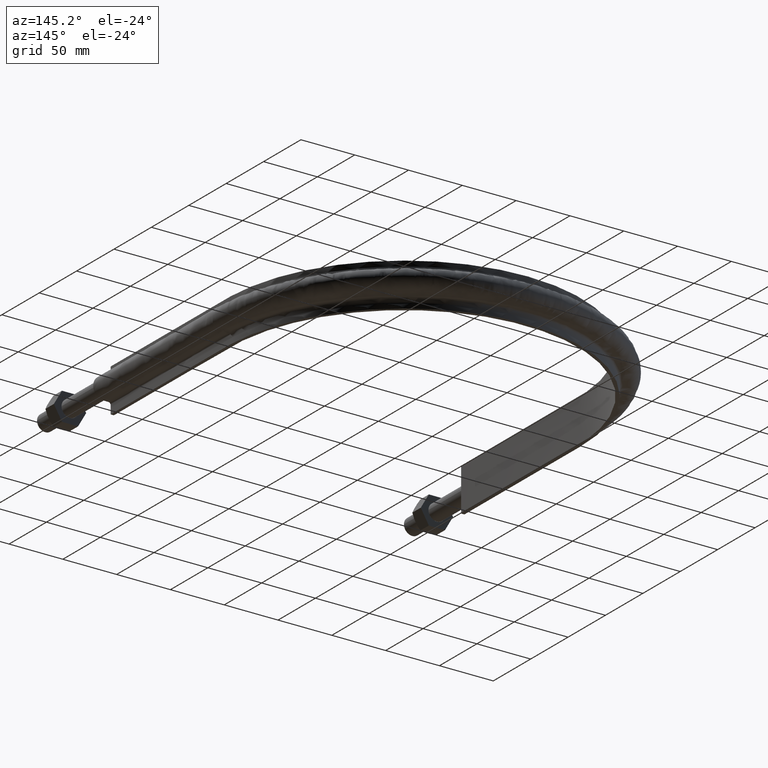
[diagram: clean part render]
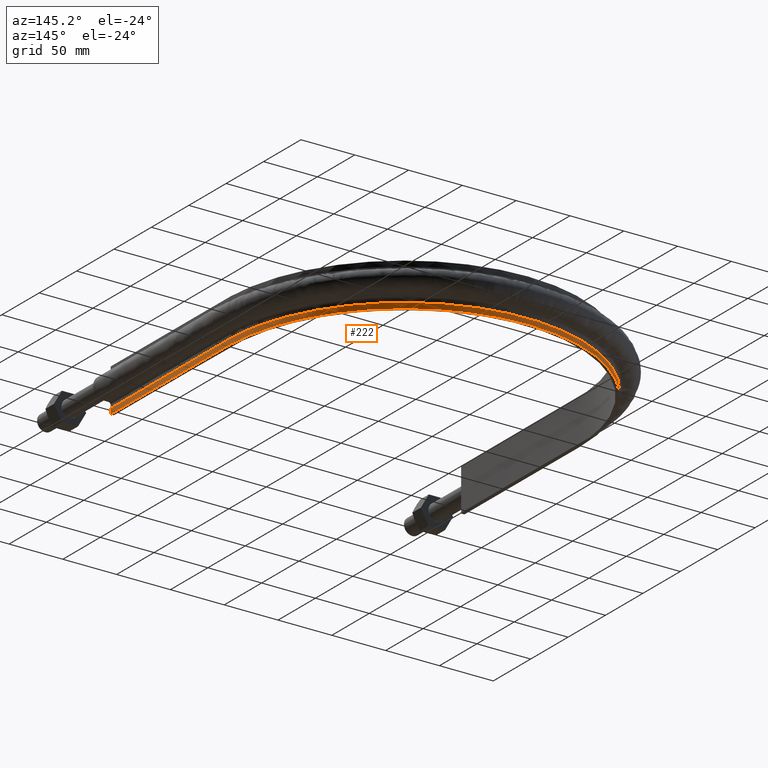
[diagram: same view with one face highlighted and labeled with its STEP entity id]
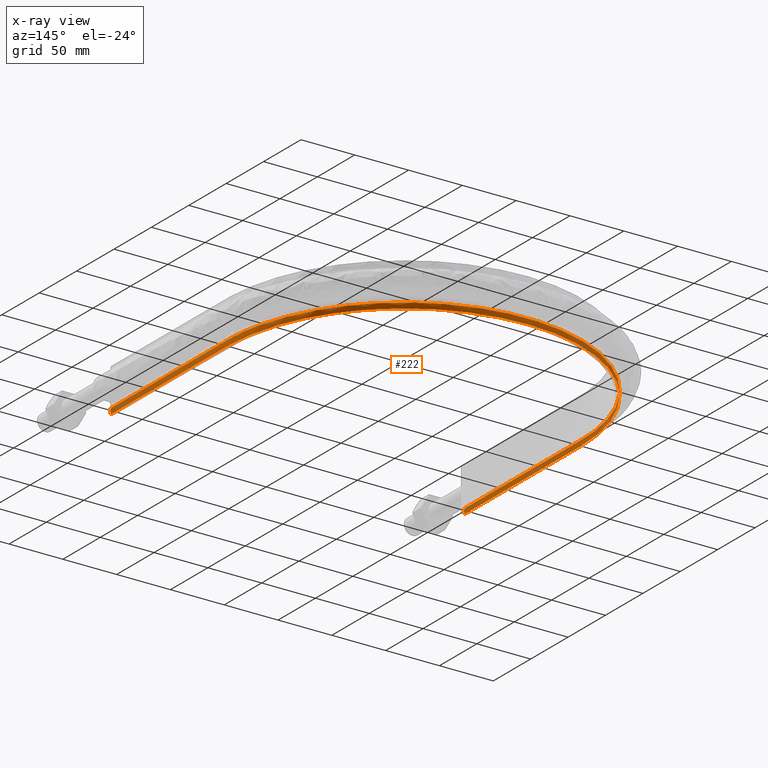
[diagram: x-ray of the same camera — body ghosted, the highlighted face saturated]
A machine part, auxiliary view. The second image highlights one B-rep face of the part: STEP entity #222.
The next image is the same camera in x-ray: the body ghosted, the highlighted face saturated — about 0% of this face is hidden behind the body in this view.
In plain terms, the highlighted face is a SurfaceOfExtrusion surface.
Its self-contained STEP definition (entity closure, byte-faithful):
#222 = ADVANCED_FACE( '', ( #267 ), #268, .T. );
#267 = FACE_OUTER_BOUND( '', #943, .T. );
#268 = SURFACE_OF_LINEAR_EXTRUSION( '', #944, #945 );
#943 = EDGE_LOOP( '', ( #1561, #1562, #1563, #1564 ) );
#944 = B_SPLINE_CURVE_WITH_KNOTS( '', 3, ( #1565, #1566, #1567, #1568, #1569, #1570, #1571, #1572, #1573, #1574, #1575, #1576, #1577, #1578, #1579, #1580, #1581, #1582, #1583, #1584, #1585, #1586, #1587, #1588, #1589, #1590, #1591, #1592, #1593, #1594, #1595, #1596, #1597, #1598, #1599, #1600, #1601, #1602, #1603, #1604, #1605, #1606, #1607, #1608, #1609, #1610, #1611, #1612, #1613, #1614, #1615, #1616, #1617, #1618, #1619, #1620, #1621, #1622, #1623, #1624, #1625, #1626, #1627, #1628, #1629, #1630, #1631, #1632, #1633, #1634, #1635, #1636, #1637, #1638, #1639, #1640, #1641, #1642, #1643, #1644, #1645, #1646, #1647, #1648, #1649, #1650, #1651, #1652, #1653, #1654, #1655, #1656, #1657, #1658, #1659, #1660, #1661, #1662, #1663, #1664, #1665, #1666, #1667, #1668, #1669, #1670, #1671, #1672, #1673, #1674 ), .UNSPECIFIED., .F., .F., ( 4, 1, 2, 2, 2, 2, 2, 2, 2, 2, 2, 2, 2, 2, 2, 2, 2, 2, 2, 2, 2, 2, 2, 2, 2, 2, 2, 2, 2, 2, 2, 2, 2, 2, 2, 2, 2, 2, 2, 2, 2, 2, 2, 2, 2, 2, 2, 2, 2, 2, 2, 2, 2, 2, 1, 4 ), ( 0.000000000000000, 0.124999999999995, 0.187499999999993, 0.191406249999993, 0.195312499999993, 0.203124999999992, 0.218749999999991, 0.222656249999991, 0.226562499999991, 0.234374999999991, 0.249999999999991, 0.281249999999991, 0.289062499999991, 0.292968749999991, 0.296874999999991, 0.312499999999991, 0.343749999999991, 0.351562499999991, 0.359374999999991, 0.374999999999990, 0.406249999999990, 0.421874999999990, 0.429687499999990, 0.437499999999990, 0.468749999999989, 0.484374999999989, 0.492187499999989, 0.499999999999989, 0.515624999999989, 0.531249999999988, 0.546874999999988, 0.554687499999988, 0.562499999999988, 0.578124999999988, 0.593749999999988, 0.624999999999988, 0.628906249999988, 0.632812499999988, 0.640624999999988, 0.656249999999988, 0.687499999999988, 0.691406249999988, 0.695312499999988, 0.703124999999988, 0.718749999999988, 0.749999999999988, 0.757812499999988, 0.761718749999988, 0.765624999999988, 0.781249999999989, 0.796874999999990, 0.804687499999990, 0.808593749999990, 0.812499999999990, 0.874999999999994, 1.00000000000000 ), .UNSPECIFIED. );
#945 = VECTOR( '', #1675, 1000.00000000000 );
#1561 = ORIENTED_EDGE( '', *, *, #1924, .T. );
#1562 = ORIENTED_EDGE( '', *, *, #1929, .T. );
#1563 = ORIENTED_EDGE( '', *, *, #1931, .F. );
#1564 = ORIENTED_EDGE( '', *, *, #1932, .F. );
#1565 = CARTESIAN_POINT( '', ( -164.400000000000, 78.5100000000001, -15.0000000000000 ) );
#1566 = CARTESIAN_POINT( '', ( -164.400000000000, 112.996106467763, -15.0000000000000 ) );
#1567 = CARTESIAN_POINT( '', ( -164.400000000000, 164.725266169408, -15.0000000000000 ) );
#1568 = CARTESIAN_POINT( '', ( -164.400000000000, 216.454425871052, -15.0000000000000 ) );
#1569 = CARTESIAN_POINT( '', ( -164.400000000000, 234.775169932051, -15.0000000000000 ) );
#1570 = CARTESIAN_POINT( '', ( -164.398813550317, 235.852821581500, -15.0000000000000 ) );
#1571 = CARTESIAN_POINT( '', ( -164.368108367063, 238.007189322103, -15.0000000000000 ) );
#1572 = CARTESIAN_POINT( '', ( -164.342080895018, 239.084020697952, -15.0000000000000 ) );
#1573 = CARTESIAN_POINT( '', ( -164.232092194460, 242.313461250392, -15.0000000000000 ) );
#1574 = CARTESIAN_POINT( '', ( -164.116241194121, 244.465017397138, -15.0000000000000 ) );
#1575 = CARTESIAN_POINT( '', ( -163.641462036595, 250.915484711679, -15.0000000000000 ) );
#1576 = CARTESIAN_POINT( '', ( -163.155580462305, 255.210203759885, -15.0000000000000 ) );
#1577 = CARTESIAN_POINT( '', ( -162.333675363724, 260.571517826757, -15.0000000000000 ) );
#1578 = CARTESIAN_POINT( '', ( -162.158545284194, 261.643425696206, -15.0000000000000 ) );
#1579 = CARTESIAN_POINT( '', ( -161.786628214989, 263.786526303843, -15.0000000000000 ) );
#1580 = CARTESIAN_POINT( '', ( -161.589634482679, 264.858713038455, -15.0000000000000 ) );
#1581 = CARTESIAN_POINT( '', ( -160.968305431881, 268.062088811464, -15.0000000000000 ) );
#1582 = CARTESIAN_POINT( '', ( -160.513270676098, 270.182710055850, -15.0000000000000 ) );
#1583 = CARTESIAN_POINT( '', ( -159.027557754481, 276.500359593573, -15.0000000000000 ) );
#1584 = CARTESIAN_POINT( '', ( -157.876518451671, 280.653264429394, -15.0000000000000 ) );
#1585 = CARTESIAN_POINT( '', ( -153.947032001795, 292.937345931315, -15.0000000000000 ) );
#1586 = CARTESIAN_POINT( '', ( -150.691120136139, 300.893487741848, -15.0000000000000 ) );
#1587 = CARTESIAN_POINT( '', ( -145.821985675345, 310.545668134871, -15.0000000000000 ) );
#1588 = CARTESIAN_POINT( '', ( -144.807995502513, 312.461380666881, -15.0000000000000 ) );
#1589 = CARTESIAN_POINT( '', ( -143.225880960344, 315.312539944798, -15.0000000000000 ) );
#1590 = CARTESIAN_POINT( '', ( -142.687697489771, 316.260241598423, -15.0000000000000 ) );
#1591 = CARTESIAN_POINT( '', ( -141.594350337442, 318.141956024918, -15.0000000000000 ) );
#1592 = CARTESIAN_POINT( '', ( -141.039267835167, 319.075891761575, -15.0000000000000 ) );
#1593 = CARTESIAN_POINT( '', ( -138.222181199068, 323.711268029201, -15.0000000000000 ) );
#1594 = CARTESIAN_POINT( '', ( -135.835418638084, 327.310018570784, -15.0000000000000 ) );
#1595 = CARTESIAN_POINT( '', ( -128.283562816433, 337.783966292530, -15.0000000000000 ) );
#1596 = CARTESIAN_POINT( '', ( -122.726288805896, 344.336355322911, -15.0000000000000 ) );
#1597 = CARTESIAN_POINT( '', ( -115.123140385251, 351.986423454744, -15.0000000000000 ) );
#1598 = CARTESIAN_POINT( '', ( -113.569638753351, 353.489379830996, -15.0000000000000 ) );
#1599 = CARTESIAN_POINT( '', ( -110.396195337457, 356.440604987088, -15.0000000000000 ) );
#1600 = CARTESIAN_POINT( '', ( -108.774438835459, 357.890427378995, -15.0000000000000 ) );
#1601 = CARTESIAN_POINT( '', ( -103.819607334312, 362.146372134186, -15.0000000000000 ) );
#1602 = CARTESIAN_POINT( '', ( -100.426161144554, 364.834793604190, -15.0000000000000 ) );
#1603 = CARTESIAN_POINT( '', ( -89.9824687653419, 372.465514094679, -15.0000000000000 ) );
#1604 = CARTESIAN_POINT( '', ( -82.6696423250386, 376.974545597898, -15.0000000000000 ) );
#1605 = CARTESIAN_POINT( '', ( -71.1713718990070, 382.865171733881, -15.0000000000000 ) );
#1606 = CARTESIAN_POINT( '', ( -67.2506245394262, 384.683525984584, -15.0000000000000 ) );
#1607 = CARTESIAN_POINT( '', ( -61.2349390330761, 387.189020812454, -15.0000000000000 ) );
#1608 = CARTESIAN_POINT( '', ( -59.2041890055403, 387.988083247064, -15.0000000000000 ) );
#1609 = CARTESIAN_POINT( '', ( -55.1322863354683, 389.498206135326, -15.0000000000000 ) );
#1610 = CARTESIAN_POINT( '', ( -53.0874238815457, 390.210949480402, -15.0000000000000 ) );
#1611 = CARTESIAN_POINT( '', ( -42.8192026236166, 393.566146384567, -15.0000000000000 ) );
#1612 = CARTESIAN_POINT( '', ( -34.4651179161253, 395.587794430536, -15.0000000000000 ) );
#1613 = CARTESIAN_POINT( '', ( -21.7242525597123, 397.624238271828, -15.0000000000000 ) );
#1614 = CARTESIAN_POINT( '', ( -17.4422836120292, 398.136775373455, -15.0000000000000 ) );
#1615 = CARTESIAN_POINT( '', ( -10.9662055313146, 398.653296815738, -15.0000000000000 ) );
#1616 = CARTESIAN_POINT( '', ( -8.79864529239620, 398.783359457582, -15.0000000000000 ) );
#1617 = CARTESIAN_POINT( '', ( -4.44551903538577, 398.957976921619, -15.0000000000000 ) );
#1618 = CARTESIAN_POINT( '', ( -2.27259610837854, 399.001985705461, -15.0000000000000 ) );
#1619 = CARTESIAN_POINT( '', ( 4.22655632945022, 399.006162562492, -15.0000000000000 ) );
#1620 = CARTESIAN_POINT( '', ( 8.53713545173537, 398.838905013959, -15.0000000000000 ) );
#1621 = CARTESIAN_POINT( '', ( 17.1147215710093, 398.170483930921, -15.0000000000000 ) );
#1622 = CARTESIAN_POINT( '', ( 21.3817269434237, 397.669307946827, -15.0000000000000 ) );
#1623 = CARTESIAN_POINT( '', ( 29.8718824409126, 396.330880345343, -15.0000000000000 ) );
#1624 = CARTESIAN_POINT( '', ( 34.0949513257592, 395.493006160240, -15.0000000000000 ) );
#1625 = CARTESIAN_POINT( '', ( 40.3962993198101, 393.981349502615, -15.0000000000000 ) );
#1626 = CARTESIAN_POINT( '', ( 42.4912038565129, 393.434972561113, -15.0000000000000 ) );
#1627 = CARTESIAN_POINT( '', ( 46.6697995000334, 392.256286873398, -15.0000000000000 ) );
#1628 = CARTESIAN_POINT( '', ( 48.7579338922558, 391.622436253105, -15.0000000000000 ) );
#1629 = CARTESIAN_POINT( '', ( 54.9584216875447, 389.605524079873, -15.0000000000000 ) );
#1630 = CARTESIAN_POINT( '', ( 59.0140687451709, 388.106221395848, -15.0000000000000 ) );
#1631 = CARTESIAN_POINT( '', ( 66.9734086702903, 384.806295118109, -15.0000000000000 ) );
#1632 = CARTESIAN_POINT( '', ( 70.8770915855636, 383.005651789421, -15.0000000000000 ) );
#1633 = CARTESIAN_POINT( '', ( 82.3605021218268, 377.152321599626, -15.0000000000000 ) );
#1634 = CARTESIAN_POINT( '', ( 89.7120307014920, 372.647122421075, -15.0000000000000 ) );
#1635 = CARTESIAN_POINT( '', ( 97.6299249979688, 366.879626274600, -15.0000000000000 ) );
#1636 = CARTESIAN_POINT( '', ( 98.5047204132680, 366.229041053651, -15.0000000000000 ) );
#1637 = CARTESIAN_POINT( '', ( 100.236657581933, 364.914222046599, -15.0000000000000 ) );
#1638 = CARTESIAN_POINT( '', ( 101.094794684466, 364.249272856705, -15.0000000000000 ) );
#1639 = CARTESIAN_POINT( '', ( 103.645933153505, 362.232019577849, -15.0000000000000 ) );
#1640 = CARTESIAN_POINT( '', ( 105.315674270232, 360.857321899442, -15.0000000000000 ) );
#1641 = CARTESIAN_POINT( '', ( 110.233147606976, 356.644897390919, -15.0000000000000 ) );
#1642 = CARTESIAN_POINT( '', ( 113.389316657785, 353.719018970044, -15.0000000000000 ) );
#1643 = CARTESIAN_POINT( '', ( 122.494796724361, 344.591882752152, -15.0000000000000 ) );
#1644 = CARTESIAN_POINT( '', ( 128.081145291164, 338.041186228428, -15.0000000000000 ) );
#1645 = CARTESIAN_POINT( '', ( 133.803670384363, 330.130479675381, -15.0000000000000 ) );
#1646 = CARTESIAN_POINT( '', ( 134.431692733714, 329.243989644066, -15.0000000000000 ) );
#1647 = CARTESIAN_POINT( '', ( 135.671998176902, 327.455856759366, -15.0000000000000 ) );
#1648 = CARTESIAN_POINT( '', ( 136.284665085840, 326.553597174778, -15.0000000000000 ) );
#1649 = CARTESIAN_POINT( '', ( 138.091073738600, 323.835825608081, -15.0000000000000 ) );
#1650 = CARTESIAN_POINT( '', ( 139.255724754700, 322.005851801354, -15.0000000000000 ) );
#1651 = CARTESIAN_POINT( '', ( 142.632951955004, 316.462530378628, -15.0000000000000 ) );
#1652 = CARTESIAN_POINT( '', ( 144.729041813961, 312.695892337488, -15.0000000000000 ) );
#1653 = CARTESIAN_POINT( '', ( 150.559103149299, 301.186356080804, -15.0000000000000 ) );
#1654 = CARTESIAN_POINT( '', ( 153.837172045715, 293.234890531218, -15.0000000000000 ) );
#1655 = CARTESIAN_POINT( '', ( 157.149590192740, 282.936358190019, -15.0000000000000 ) );
#1656 = CARTESIAN_POINT( '', ( 157.772812341462, 280.858690291605, -15.0000000000000 ) );
#1657 = CARTESIAN_POINT( '', ( 158.648068770349, 277.714933118652, -15.0000000000000 ) );
#1658 = CARTESIAN_POINT( '', ( 158.930158123234, 276.661365833308, -15.0000000000000 ) );
#1659 = CARTESIAN_POINT( '', ( 159.472262153517, 274.553221977531, -15.0000000000000 ) );
#1660 = CARTESIAN_POINT( '', ( 159.732447986844, 273.498121732389, -15.0000000000000 ) );
#1661 = CARTESIAN_POINT( '', ( 160.979600094206, 268.217531333791, -15.0000000000000 ) );
#1662 = CARTESIAN_POINT( '', ( 161.805586980862, 263.976806953231, -15.0000000000000 ) );
#1663 = CARTESIAN_POINT( '', ( 163.122468535573, 255.463646859113, -15.0000000000000 ) );
#1664 = CARTESIAN_POINT( '', ( 163.613345066263, 251.191209429132, -15.0000000000000 ) );
#1665 = CARTESIAN_POINT( '', ( 164.098151632013, 244.758751892187, -15.0000000000000 ) );
#1666 = CARTESIAN_POINT( '', ( 164.217770636892, 242.610626316205, -15.0000000000000 ) );
#1667 = CARTESIAN_POINT( '', ( 164.333610316843, 239.382420246157, -15.0000000000000 ) );
#1668 = CARTESIAN_POINT( '', ( 164.361621235171, 238.305348210462, -15.0000000000000 ) );
#1669 = CARTESIAN_POINT( '', ( 164.396285024590, 236.149182927863, -15.0000000000000 ) );
#1670 = CARTESIAN_POINT( '', ( 164.400000000000, 235.069811654245, -15.0000000000000 ) );
#1671 = CARTESIAN_POINT( '', ( 164.400000000000, 216.714523391334, -15.0000000000000 ) );
#1672 = CARTESIAN_POINT( '', ( 164.400000000000, 164.887827119584, -15.0000000000000 ) );
#1673 = CARTESIAN_POINT( '', ( 164.400000000000, 113.061130847834, -15.0000000000000 ) );
#1674 = CARTESIAN_POINT( '', ( 164.400000000000, 78.5100000000000, -15.0000000000000 ) );
#1675 = DIRECTION( '', ( 0.000000000000000, 0.000000000000000, -1.00000000000000 ) );
#1924 = EDGE_CURVE( '', #2001, #1999, #2002, .T. );
#1929 = EDGE_CURVE( '', #1999, #2009, #2011, .F. );
#1931 = EDGE_CURVE( '', #2013, #2009, #2014, .T. );
#1932 = EDGE_CURVE( '', #2001, #2013, #2015, .F. );
#1999 = VERTEX_POINT( '', #2274 );
#2001 = VERTEX_POINT( '', #2307 );
#2002 = B_SPLINE_CURVE_WITH_KNOTS( '', 3, ( #2308, #2309, #2310, #2311, #2312, #2313, #2314, #2315, #2316, #2317, #2318, #2319, #2320, #2321, #2322, #2323, #2324, #2325, #2326, #2327, #2328, #2329, #2330, #2331, #2332, #2333, #2334, #2335, #2336, #2337, #2338, #2339, #2340, #2341, #2342, #2343, #2344, #2345, #2346, #2347, #2348, #2349, #2350, #2351, #2352, #2353, #2354, #2355, #2356, #2357, #2358, #2359, #2360, #2361, #2362, #2363, #2364, #2365, #2366, #2367, #2368, #2369, #2370, #2371, #2372, #2373, #2374, #2375, #2376, #2377, #2378, #2379, #2380, #2381, #2382, #2383, #2384, #2385, #2386, #2387, #2388, #2389, #2390, #2391, #2392, #2393, #2394, #2395, #2396, #2397, #2398, #2399, #2400, #2401, #2402, #2403, #2404, #2405, #2406, #2407, #2408, #2409, #2410, #2411, #2412, #2413, #2414, #2415, #2416, #2417 ), .UNSPECIFIED., .F., .F., ( 4, 1, 2, 2, 2, 2, 2, 2, 2, 2, 2, 2, 2, 2, 2, 2, 2, 2, 2, 2, 2, 2, 2, 2, 2, 2, 2, 2, 2, 2, 2, 2, 2, 2, 2, 2, 2, 2, 2, 2, 2, 2, 2, 2, 2, 2, 2, 2, 2, 2, 2, 2, 2, 2, 1, 4 ), ( 0.000000000000000, 0.124999999999995, 0.187499999999993, 0.191406249999993, 0.195312499999993, 0.203124999999992, 0.218749999999991, 0.222656249999991, 0.226562499999991, 0.234374999999991, 0.249999999999991, 0.281249999999991, 0.289062499999991, 0.292968749999991, 0.296874999999991, 0.312499999999991, 0.343749999999991, 0.351562499999991, 0.359374999999991, 0.374999999999990, 0.406249999999990, 0.421874999999990, 0.429687499999990, 0.437499999999990, 0.468749999999989, 0.484374999999989, 0.492187499999989, 0.499999999999989, 0.515624999999989, 0.531249999999988, 0.546874999999988, 0.554687499999988, 0.562499999999988, 0.578124999999988, 0.593749999999988, 0.624999999999988, 0.628906249999988, 0.632812499999988, 0.640624999999988, 0.656249999999988, 0.687499999999988, 0.691406249999988, 0.695312499999988, 0.703124999999988, 0.718749999999988, 0.749999999999988, 0.757812499999988, 0.761718749999988, 0.765624999999988, 0.781249999999989, 0.796874999999990, 0.804687499999990, 0.808593749999990, 0.812499999999990, 0.874999999999994, 1.00000000000000 ), .UNSPECIFIED. );
#2009 = VERTEX_POINT( '', #2466 );
#2011 = LINE( '', #2469, #2470 );
#2013 = VERTEX_POINT( '', #2473 );
#2014 = B_SPLINE_CURVE_WITH_KNOTS( '', 3, ( #2474, #2475, #2476, #2477, #2478, #2479, #2480, #2481, #2482, #2483, #2484, #2485, #2486, #2487, #2488, #2489, #2490, #2491, #2492, #2493, #2494, #2495, #2496, #2497, #2498, #2499, #2500, #2501, #2502, #2503, #2504, #2505, #2506, #2507, #2508, #2509, #2510, #2511, #2512, #2513, #2514, #2515, #2516, #2517, #2518, #2519, #2520, #2521, #2522, #2523, #2524, #2525, #2526, #2527, #2528, #2529, #2530, #2531, #2532, #2533, #2534, #2535, #2536, #2537, #2538, #2539, #2540, #2541, #2542, #2543, #2544, #2545, #2546, #2547, #2548, #2549, #2550, #2551, #2552, #2553, #2554, #2555, #2556, #2557, #2558, #2559, #2560, #2561, #2562, #2563, #2564, #2565, #2566, #2567, #2568, #2569, #2570, #2571, #2572, #2573, #2574, #2575, #2576, #2577, #2578, #2579, #2580, #2581, #2582, #2583, #2584, #2585, #2586, #2587, #2588, #2589, #2590, #2591, #2592, #2593, #2594, #2595, #2596, #2597, #2598, #2599, #2600, #2601, #2602, #2603, #2604 ), .UNSPECIFIED., .F., .F., ( 4, 1, 1, 1, 1, 2, 2, 2, 2, 2, 2, 2, 2, 2, 2, 2, 2, 2, 2, 2, 2, 2, 2, 2, 2, 2, 2, 2, 2, 2, 2, 2, 2, 2, 2, 2, 2, 2, 2, 2, 2, 2, 2, 2, 2, 2, 2, 2, 2, 2, 2, 2, 2, 2, 2, 2, 1, 2, 2, 2, 2, 2, 2, 2, 2, 1, 1, 1, 1, 4 ), ( 2.77555756156289E-017, 0.104054729085103, 0.130068411356378, 0.143075252492016, 0.149578673059835, 0.152830383343744, 0.156082093627654, 0.159333803911563, 0.162585514195473, 0.169088934763292, 0.182095775898929, 0.195102617034567, 0.208109458170204, 0.221116299305842, 0.227619719873661, 0.234123140441480, 0.247129981577118, 0.260136822712756, 0.273143663848393, 0.276395374132303, 0.279647084416212, 0.286150504984031, 0.299157346119668, 0.312164187255306, 0.325171028390943, 0.331674448958762, 0.334926159242671, 0.338177869526581, 0.351184710662218, 0.364191551797856, 0.377198392933494, 0.383701813501312, 0.386953523785222, 0.390205234069131, 0.403212075204769, 0.416218916340407, 0.429225757476045, 0.442232598611682, 0.448736019179501, 0.455239439747320, 0.468246280882958, 0.481253122018596, 0.494259963154234, 0.500763383722053, 0.507266804289871, 0.520273645425509, 0.533280486561147, 0.546287327696785, 0.552790748264604, 0.556042458548513, 0.559294168832423, 0.572301009968061, 0.585307851103699, 0.598314692239338, 0.611321533374976, 0.614573243658886, 0.617824953942795, 0.624328374510615, 0.637335215646253, 0.650342056781891, 0.663348897917529, 0.669852318485348, 0.673104028769258, 0.676355739053168, 0.679607449337077, 0.682859159620987, 0.689362580188806, 0.702369421324444, 0.728383103595721, 0.832437832680827 ), .UNSPECIFIED. );
#2015 = LINE( '', #2605, #2606 );
#2274 = CARTESIAN_POINT( '', ( 164.400000000000, 78.5100000000001, -15.0000000000000 ) );
#2307 = CARTESIAN_POINT( '', ( -164.400000000000, 78.5100000000001, -15.0000000000000 ) );
#2308 = CARTESIAN_POINT( '', ( -164.400000000000, 78.5100000000001, -15.0000000000000 ) );
#2309 = CARTESIAN_POINT( '', ( -164.400000000000, 112.996106467763, -15.0000000000000 ) );
#2310 = CARTESIAN_POINT( '', ( -164.400000000000, 164.725266169408, -15.0000000000000 ) );
#2311 = CARTESIAN_POINT( '', ( -164.400000000000, 216.454425871052, -15.0000000000000 ) );
#2312 = CARTESIAN_POINT( '', ( -164.400000000000, 234.775169932051, -15.0000000000000 ) );
#2313 = CARTESIAN_POINT( '', ( -164.398813550317, 235.852821581500, -15.0000000000000 ) );
#2314 = CARTESIAN_POINT( '', ( -164.368108367063, 238.007189322103, -15.0000000000000 ) );
#2315 = CARTESIAN_POINT( '', ( -164.342080895018, 239.084020697952, -15.0000000000000 ) );
#2316 = CARTESIAN_POINT( '', ( -164.232092194460, 242.313461250392, -15.0000000000000 ) );
#2317 = CARTESIAN_POINT( '', ( -164.116241194121, 244.465017397138, -15.0000000000000 ) );
#2318 = CARTESIAN_POINT( '', ( -163.641462036595, 250.915484711679, -15.0000000000000 ) );
#2319 = CARTESIAN_POINT( '', ( -163.155580462305, 255.210203759885, -15.0000000000000 ) );
#2320 = CARTESIAN_POINT( '', ( -162.333675363724, 260.571517826757, -15.0000000000000 ) );
#2321 = CARTESIAN_POINT( '', ( -162.158545284194, 261.643425696206, -15.0000000000000 ) );
#2322 = CARTESIAN_POINT( '', ( -161.786628214989, 263.786526303843, -15.0000000000000 ) );
#2323 = CARTESIAN_POINT( '', ( -161.589634482679, 264.858713038455, -15.0000000000000 ) );
#2324 = CARTESIAN_POINT( '', ( -160.968305431881, 268.062088811464, -15.0000000000000 ) );
#2325 = CARTESIAN_POINT( '', ( -160.513270676098, 270.182710055850, -15.0000000000000 ) );
#2326 = CARTESIAN_POINT( '', ( -159.027557754481, 276.500359593573, -15.0000000000000 ) );
#2327 = CARTESIAN_POINT( '', ( -157.876518451671, 280.653264429394, -15.0000000000000 ) );
#2328 = CARTESIAN_POINT( '', ( -153.947032001795, 292.937345931315, -15.0000000000000 ) );
#2329 = CARTESIAN_POINT( '', ( -150.691120136139, 300.893487741848, -15.0000000000000 ) );
#2330 = CARTESIAN_POINT( '', ( -145.821985675345, 310.545668134871, -15.0000000000000 ) );
#2331 = CARTESIAN_POINT( '', ( -144.807995502513, 312.461380666881, -15.0000000000000 ) );
#2332 = CARTESIAN_POINT( '', ( -143.225880960344, 315.312539944798, -15.0000000000000 ) );
#2333 = CARTESIAN_POINT( '', ( -142.687697489771, 316.260241598423, -15.0000000000000 ) );
#2334 = CARTESIAN_POINT( '', ( -141.594350337442, 318.141956024918, -15.0000000000000 ) );
#2335 = CARTESIAN_POINT( '', ( -141.039267835167, 319.075891761575, -15.0000000000000 ) );
#2336 = CARTESIAN_POINT( '', ( -138.222181199068, 323.711268029201, -15.0000000000000 ) );
#2337 = CARTESIAN_POINT( '', ( -135.835418638084, 327.310018570784, -15.0000000000000 ) );
#2338 = CARTESIAN_POINT( '', ( -128.283562816433, 337.783966292530, -15.0000000000000 ) );
#2339 = CARTESIAN_POINT( '', ( -122.726288805896, 344.336355322911, -15.0000000000000 ) );
#2340 = CARTESIAN_POINT( '', ( -115.123140385251, 351.986423454744, -15.0000000000000 ) );
#2341 = CARTESIAN_POINT( '', ( -113.569638753351, 353.489379830996, -15.0000000000000 ) );
#2342 = CARTESIAN_POINT( '', ( -110.396195337457, 356.440604987088, -15.0000000000000 ) );
#2343 = CARTESIAN_POINT( '', ( -108.774438835459, 357.890427378995, -15.0000000000000 ) );
#2344 = CARTESIAN_POINT( '', ( -103.819607334312, 362.146372134186, -15.0000000000000 ) );
#2345 = CARTESIAN_POINT( '', ( -100.426161144554, 364.834793604190, -15.0000000000000 ) );
#2346 = CARTESIAN_POINT( '', ( -89.9824687653419, 372.465514094679, -15.0000000000000 ) );
#2347 = CARTESIAN_POINT( '', ( -82.6696423250386, 376.974545597898, -15.0000000000000 ) );
#2348 = CARTESIAN_POINT( '', ( -71.1713718990070, 382.865171733881, -15.0000000000000 ) );
#2349 = CARTESIAN_POINT( '', ( -67.2506245394262, 384.683525984584, -15.0000000000000 ) );
#2350 = CARTESIAN_POINT( '', ( -61.2349390330761, 387.189020812454, -15.0000000000000 ) );
#2351 = CARTESIAN_POINT( '', ( -59.2041890055403, 387.988083247064, -15.0000000000000 ) );
#2352 = CARTESIAN_POINT( '', ( -55.1322863354683, 389.498206135326, -15.0000000000000 ) );
#2353 = CARTESIAN_POINT( '', ( -53.0874238815457, 390.210949480402, -15.0000000000000 ) );
#2354 = CARTESIAN_POINT( '', ( -42.8192026236166, 393.566146384567, -15.0000000000000 ) );
#2355 = CARTESIAN_POINT( '', ( -34.4651179161253, 395.587794430536, -15.0000000000000 ) );
#2356 = CARTESIAN_POINT( '', ( -21.7242525597123, 397.624238271828, -15.0000000000000 ) );
#2357 = CARTESIAN_POINT( '', ( -17.4422836120292, 398.136775373455, -15.0000000000000 ) );
#2358 = CARTESIAN_POINT( '', ( -10.9662055313146, 398.653296815738, -15.0000000000000 ) );
#2359 = CARTESIAN_POINT( '', ( -8.79864529239620, 398.783359457582, -15.0000000000000 ) );
#2360 = CARTESIAN_POINT( '', ( -4.44551903538577, 398.957976921619, -15.0000000000000 ) );
#2361 = CARTESIAN_POINT( '', ( -2.27259610837854, 399.001985705461, -15.0000000000000 ) );
#2362 = CARTESIAN_POINT( '', ( 4.22655632945022, 399.006162562492, -15.0000000000000 ) );
#2363 = CARTESIAN_POINT( '', ( 8.53713545173537, 398.838905013959, -15.0000000000000 ) );
#2364 = CARTESIAN_POINT( '', ( 17.1147215710093, 398.170483930921, -15.0000000000000 ) );
#2365 = CARTESIAN_POINT( '', ( 21.3817269434237, 397.669307946827, -15.0000000000000 ) );
#2366 = CARTESIAN_POINT( '', ( 29.8718824409126, 396.330880345343, -15.0000000000000 ) );
#2367 = CARTESIAN_POINT( '', ( 34.0949513257592, 395.493006160240, -15.0000000000000 ) );
#2368 = CARTESIAN_POINT( '', ( 40.3962993198101, 393.981349502615, -15.0000000000000 ) );
#2369 = CARTESIAN_POINT( '', ( 42.4912038565129, 393.434972561113, -15.0000000000000 ) );
#2370 = CARTESIAN_POINT( '', ( 46.6697995000334, 392.256286873398, -15.0000000000000 ) );
#2371 = CARTESIAN_POINT( '', ( 48.7579338922558, 391.622436253105, -15.0000000000000 ) );
#2372 = CARTESIAN_POINT( '', ( 54.9584216875447, 389.605524079873, -15.0000000000000 ) );
#2373 = CARTESIAN_POINT( '', ( 59.0140687451709, 388.106221395848, -15.0000000000000 ) );
#2374 = CARTESIAN_POINT( '', ( 66.9734086702903, 384.806295118109, -15.0000000000000 ) );
#2375 = CARTESIAN_POINT( '', ( 70.8770915855636, 383.005651789421, -15.0000000000000 ) );
#2376 = CARTESIAN_POINT( '', ( 82.3605021218268, 377.152321599626, -15.0000000000000 ) );
#2377 = CARTESIAN_POINT( '', ( 89.7120307014920, 372.647122421075, -15.0000000000000 ) );
#2378 = CARTESIAN_POINT( '', ( 97.6299249979688, 366.879626274600, -15.0000000000000 ) );
#2379 = CARTESIAN_POINT( '', ( 98.5047204132680, 366.229041053651, -15.0000000000000 ) );
#2380 = CARTESIAN_POINT( '', ( 100.236657581933, 364.914222046599, -15.0000000000000 ) );
#2381 = CARTESIAN_POINT( '', ( 101.094794684466, 364.249272856705, -15.0000000000000 ) );
#2382 = CARTESIAN_POINT( '', ( 103.645933153505, 362.232019577849, -15.0000000000000 ) );
#2383 = CARTESIAN_POINT( '', ( 105.315674270232, 360.857321899442, -15.0000000000000 ) );
#2384 = CARTESIAN_POINT( '', ( 110.233147606976, 356.644897390919, -15.0000000000000 ) );
#2385 = CARTESIAN_POINT( '', ( 113.389316657785, 353.719018970044, -15.0000000000000 ) );
#2386 = CARTESIAN_POINT( '', ( 122.494796724361, 344.591882752152, -15.0000000000000 ) );
#2387 = CARTESIAN_POINT( '', ( 128.081145291164, 338.041186228428, -15.0000000000000 ) );
#2388 = CARTESIAN_POINT( '', ( 133.803670384363, 330.130479675381, -15.0000000000000 ) );
#2389 = CARTESIAN_POINT( '', ( 134.431692733714, 329.243989644066, -15.0000000000000 ) );
#2390 = CARTESIAN_POINT( '', ( 135.671998176902, 327.455856759366, -15.0000000000000 ) );
#2391 = CARTESIAN_POINT( '', ( 136.284665085840, 326.553597174778, -15.0000000000000 ) );
#2392 = CARTESIAN_POINT( '', ( 138.091073738600, 323.835825608081, -15.0000000000000 ) );
#2393 = CARTESIAN_POINT( '', ( 139.255724754700, 322.005851801354, -15.0000000000000 ) );
#2394 = CARTESIAN_POINT( '', ( 142.632951955004, 316.462530378628, -15.0000000000000 ) );
#2395 = CARTESIAN_POINT( '', ( 144.729041813961, 312.695892337488, -15.0000000000000 ) );
#2396 = CARTESIAN_POINT( '', ( 150.559103149299, 301.186356080804, -15.0000000000000 ) );
#2397 = CARTESIAN_POINT( '', ( 153.837172045715, 293.234890531218, -15.0000000000000 ) );
#2398 = CARTESIAN_POINT( '', ( 157.149590192740, 282.936358190019, -15.0000000000000 ) );
#2399 = CARTESIAN_POINT( '', ( 157.772812341462, 280.858690291605, -15.0000000000000 ) );
#2400 = CARTESIAN_POINT( '', ( 158.648068770349, 277.714933118652, -15.0000000000000 ) );
#2401 = CARTESIAN_POINT( '', ( 158.930158123234, 276.661365833308, -15.0000000000000 ) );
#2402 = CARTESIAN_POINT( '', ( 159.472262153517, 274.553221977531, -15.0000000000000 ) );
#2403 = CARTESIAN_POINT( '', ( 159.732447986844, 273.498121732389, -15.0000000000000 ) );
#2404 = CARTESIAN_POINT( '', ( 160.979600094206, 268.217531333791, -15.0000000000000 ) );
#2405 = CARTESIAN_POINT( '', ( 161.805586980862, 263.976806953231, -15.0000000000000 ) );
#2406 = CARTESIAN_POINT( '', ( 163.122468535573, 255.463646859113, -15.0000000000000 ) );
#2407 = CARTESIAN_POINT( '', ( 163.613345066263, 251.191209429132, -15.0000000000000 ) );
#2408 = CARTESIAN_POINT( '', ( 164.098151632013, 244.758751892187, -15.0000000000000 ) );
#2409 = CARTESIAN_POINT( '', ( 164.217770636892, 242.610626316205, -15.0000000000000 ) );
#2410 = CARTESIAN_POINT( '', ( 164.333610316843, 239.382420246157, -15.0000000000000 ) );
#2411 = CARTESIAN_POINT( '', ( 164.361621235171, 238.305348210462, -15.0000000000000 ) );
#2412 = CARTESIAN_POINT( '', ( 164.396285024590, 236.149182927863, -15.0000000000000 ) );
#2413 = CARTESIAN_POINT( '', ( 164.400000000000, 235.069811654245, -15.0000000000000 ) );
#2414 = CARTESIAN_POINT( '', ( 164.400000000000, 216.714523391334, -15.0000000000000 ) );
#2415 = CARTESIAN_POINT( '', ( 164.400000000000, 164.887827119584, -15.0000000000000 ) );
#2416 = CARTESIAN_POINT( '', ( 164.400000000000, 113.061130847834, -15.0000000000000 ) );
#2417 = CARTESIAN_POINT( '', ( 164.400000000000, 78.5100000000000, -15.0000000000000 ) );
#2466 = CARTESIAN_POINT( '', ( 164.400000000000, 78.5100000000000, -20.0000000000000 ) );
#2469 = CARTESIAN_POINT( '', ( 164.400000000000, 78.5100000000001, 15.0000000000000 ) );
#2470 = VECTOR( '', #2935, 1000.00000000000 );
#2473 = CARTESIAN_POINT( '', ( -164.400000000000, 78.5100000000001, -20.0000000000000 ) );
#2474 = CARTESIAN_POINT( '', ( -164.400000000000, 78.5100000000001, -20.0000000000000 ) );
#2475 = CARTESIAN_POINT( '', ( -164.400000000000, 113.194956691566, -20.0000000000000 ) );
#2476 = CARTESIAN_POINT( '', ( -164.400000000000, 156.551152556023, -20.0000000000000 ) );
#2477 = CARTESIAN_POINT( '', ( -164.400000000000, 204.242968006925, -20.0000000000000 ) );
#2478 = CARTESIAN_POINT( '', ( -164.400000000000, 219.417636559485, -20.0000000000000 ) );
#2479 = CARTESIAN_POINT( '', ( -164.400000000000, 227.004970835765, -20.0000000000000 ) );
#2480 = CARTESIAN_POINT( '', ( -164.400000000000, 230.256685525599, -20.0000000000000 ) );
#2481 = CARTESIAN_POINT( '', ( -164.400000000000, 232.424495318822, -20.0000000000000 ) );
#2482 = CARTESIAN_POINT( '', ( -164.401112814939, 233.508402047329, -20.0000000000000 ) );
#2483 = CARTESIAN_POINT( '', ( -164.397791436545, 235.676206372960, -20.0000000000000 ) );
#2484 = CARTESIAN_POINT( '', ( -164.389397229220, 236.760097451181, -20.0000000000000 ) );
#2485 = CARTESIAN_POINT( '', ( -164.346347317781, 238.927836376429, -20.0000000000000 ) );
#2486 = CARTESIAN_POINT( '', ( -164.314015247172, 240.011688048578, -20.0000000000000 ) );
#2487 = CARTESIAN_POINT( '', ( -164.184658021982, 243.263189792919, -20.0000000000000 ) );
#2488 = CARTESIAN_POINT( '', ( -164.054986387869, 245.432649531974, -20.0000000000000 ) );
#2489 = CARTESIAN_POINT( '', ( -163.540089866603, 251.903443163600, -20.0000000000000 ) );
#2490 = CARTESIAN_POINT( '', ( -163.028857186243, 256.178647842775, -20.0000000000000 ) );
#2491 = CARTESIAN_POINT( '', ( -161.680784922929, 264.654119101835, -20.0000000000000 ) );
#2492 = CARTESIAN_POINT( '', ( -160.843839994310, 268.854361436522, -20.0000000000000 ) );
#2493 = CARTESIAN_POINT( '', ( -158.845991034652, 277.180287246151, -20.0000000000000 ) );
#2494 = CARTESIAN_POINT( '', ( -157.684954010363, 281.305940112830, -20.0000000000000 ) );
#2495 = CARTESIAN_POINT( '', ( -155.032434907614, 289.481194251208, -20.0000000000000 ) );
#2496 = CARTESIAN_POINT( '', ( -153.540637667281, 293.530722988721, -20.0000000000000 ) );
#2497 = CARTESIAN_POINT( '', ( -151.046446265382, 299.545983905575, -20.0000000000000 ) );
#2498 = CARTESIAN_POINT( '', ( -150.176639375757, 301.530591569493, -20.0000000000000 ) );
#2499 = CARTESIAN_POINT( '', ( -148.365677489268, 305.451034189664, -20.0000000000000 ) );
#2500 = CARTESIAN_POINT( '', ( -147.423966722706, 307.388338955483, -20.0000000000000 ) );
#2501 = CARTESIAN_POINT( '', ( -144.492313373278, 313.132875216603, -20.0000000000000 ) );
#2502 = CARTESIAN_POINT( '', ( -142.395491839975, 316.872502291715, -20.0000000000000 ) );
#2503 = CARTESIAN_POINT( '', ( -137.921089039277, 324.174166757923, -20.0000000000000 ) );
#2504 = CARTESIAN_POINT( '', ( -135.543392362294, 327.736131148692, -20.0000000000000 ) );
#2505 = CARTESIAN_POINT( '', ( -130.504111697188, 334.680491951780, -20.0000000000000 ) );
#2506 = CARTESIAN_POINT( '', ( -127.842299055254, 338.062743733108, -20.0000000000000 ) );
#2507 = CARTESIAN_POINT( '', ( -124.331524748112, 342.174483348522, -20.0000000000000 ) );
#2508 = CARTESIAN_POINT( '', ( -123.620193252742, 342.991026751497, -20.0000000000000 ) );
#2509 = CARTESIAN_POINT( '', ( -122.179027254974, 344.612409802341, -20.0000000000000 ) );
#2510 = CARTESIAN_POINT( '', ( -121.449202472707, 345.417189981225, -20.0000000000000 ) );
#2511 = CARTESIAN_POINT( '', ( -119.241901422662, 347.803147571144, -20.0000000000000 ) );
#2512 = CARTESIAN_POINT( '', ( -117.743364650805, 349.359649553347, -20.0000000000000 ) );
#2513 = CARTESIAN_POINT( '', ( -113.168603753494, 353.929094656276, -20.0000000000000 ) );
#2514 = CARTESIAN_POINT( '', ( -110.013226002109, 356.841973084908, -20.0000000000000 ) );
#2515 = CARTESIAN_POINT( '', ( -103.496070778988, 362.406802862434, -20.0000000000000 ) );
#2516 = CARTESIAN_POINT( '', ( -100.134198242753, 365.058634032373, -20.0000000000000 ) );
#2517 = CARTESIAN_POINT( '', ( -93.2034983802277, 370.100667582661, -20.0000000000000 ) );
#2518 = CARTESIAN_POINT( '', ( -89.6348208454345, 372.491059326918, -20.0000000000000 ) );
#2519 = CARTESIAN_POINT( '', ( -84.1216642835689, 375.874200301249, -20.0000000000000 ) );
#2520 = CARTESIAN_POINT( '', ( -82.2572525184671, 376.968169226840, -20.0000000000000 ) );
#2521 = CARTESIAN_POINT( '', ( -79.4199251739016, 378.557658096212, -20.0000000000000 ) );
#2522 = CARTESIAN_POINT( '', ( -78.4664937880051, 379.079355636745, -20.0000000000000 ) );
#2523 = CARTESIAN_POINT( '', ( -76.5540001382405, 380.101226290090, -20.0000000000000 ) );
#2524 = CARTESIAN_POINT( '', ( -75.5941946256136, 380.601833763861, -20.0000000000000 ) );
#2525 = CARTESIAN_POINT( '', ( -70.7776054635643, 383.053904702580, -20.0000000000000 ) );
#2526 = CARTESIAN_POINT( '', ( -66.8682015972558, 384.852656297690, -20.0000000000000 ) );
#2527 = CARTESIAN_POINT( '', ( -58.9404340251242, 388.133941467265, -20.0000000000000 ) );
#2528 = CARTESIAN_POINT( '', ( -54.9221074398526, 389.616582771216, -20.0000000000000 ) );
#2529 = CARTESIAN_POINT( '', ( -46.7771352731513, 392.267507183327, -20.0000000000000 ) );
#2530 = CARTESIAN_POINT( '', ( -42.6507752742862, 393.436619095512, -20.0000000000000 ) );
#2531 = CARTESIAN_POINT( '', ( -36.3779362801235, 394.948540612918, -20.0000000000000 ) );
#2532 = CARTESIAN_POINT( '', ( -34.2731054845814, 395.412219626068, -20.0000000000000 ) );
#2533 = CARTESIAN_POINT( '', ( -31.0947095102925, 396.046358265766, -20.0000000000000 ) );
#2534 = CARTESIAN_POINT( '', ( -30.0317191361268, 396.247507583013, -20.0000000000000 ) );
#2535 = CARTESIAN_POINT( '', ( -27.8986333936934, 396.629186444372, -20.0000000000000 ) );
#2536 = CARTESIAN_POINT( '', ( -26.8273434139472, 396.809901238470, -20.0000000000000 ) );
#2537 = CARTESIAN_POINT( '', ( -21.4696015124295, 397.658929575961, -20.0000000000000 ) );
#2538 = CARTESIAN_POINT( '', ( -17.1843900398018, 398.163087914421, -20.0000000000000 ) );
#2539 = CARTESIAN_POINT( '', ( -8.61585586475806, 398.834704046002, -20.0000000000000 ) );
#2540 = CARTESIAN_POINT( '', ( -4.33253349702278, 399.002102177490, -20.0000000000000 ) );
#2541 = CARTESIAN_POINT( '', ( 4.23224776209774, 399.004706890968, -20.0000000000000 ) );
#2542 = CARTESIAN_POINT( '', ( 8.51370656733014, 398.839898114999, -20.0000000000000 ) );
#2543 = CARTESIAN_POINT( '', ( 17.0747401533941, 398.174426027001, -20.0000000000000 ) );
#2544 = CARTESIAN_POINT( '', ( 21.3543151187181, 397.673795603420, -20.0000000000000 ) );
#2545 = CARTESIAN_POINT( '', ( 27.7722131616382, 396.661798633604, -20.0000000000000 ) );
#2546 = CARTESIAN_POINT( '', ( 29.9140086384630, 396.280063374137, -20.0000000000000 ) );
#2547 = CARTESIAN_POINT( '', ( 34.1597071945933, 395.435755209705, -20.0000000000000 ) );
#2548 = CARTESIAN_POINT( '', ( 36.2679191606568, 394.972624095616, -20.0000000000000 ) );
#2549 = CARTESIAN_POINT( '', ( 42.5495878486243, 393.462944409614, -20.0000000000000 ) );
#2550 = CARTESIAN_POINT( '', ( 46.6801348271460, 392.296270371902, -20.0000000000000 ) );
#2551 = CARTESIAN_POINT( '', ( 54.8292840046192, 389.649533827342, -20.0000000000000 ) );
#2552 = CARTESIAN_POINT( '', ( 58.8478709900223, 388.169428730292, -20.0000000000000 ) );
#2553 = CARTESIAN_POINT( '', ( 66.7727743121221, 384.894917799151, -20.0000000000000 ) );
#2554 = CARTESIAN_POINT( '', ( 70.6791112233391, 383.100569563255, -20.0000000000000 ) );
#2555 = CARTESIAN_POINT( '', ( 76.4520718313732, 380.166765884874, -20.0000000000000 ) );
#2556 = CARTESIAN_POINT( '', ( 78.3619473175650, 379.148393463066, -20.0000000000000 ) );
#2557 = CARTESIAN_POINT( '', ( 82.1521398445218, 377.028900000017, -20.0000000000000 ) );
#2558 = CARTESIAN_POINT( '', ( 84.0218361506175, 375.933662305826, -20.0000000000000 ) );
#2559 = CARTESIAN_POINT( '', ( 89.5459979753048, 372.549008376613, -20.0000000000000 ) );
#2560 = CARTESIAN_POINT( '', ( 93.1199772103756, 370.158194645052, -20.0000000000000 ) );
#2561 = CARTESIAN_POINT( '', ( 100.057978294400, 365.117239772002, -20.0000000000000 ) );
#2562 = CARTESIAN_POINT( '', ( 103.421801536316, 362.466853322406, -20.0000000000000 ) );
#2563 = CARTESIAN_POINT( '', ( 109.940193148707, 356.907620719418, -20.0000000000000 ) );
#2564 = CARTESIAN_POINT( '', ( 113.094804278784, 353.998827380252, -20.0000000000000 ) );
#2565 = CARTESIAN_POINT( '', ( 117.666768975033, 349.438073768972, -20.0000000000000 ) );
#2566 = CARTESIAN_POINT( '', ( 119.164117876873, 347.884919181140, -20.0000000000000 ) );
#2567 = CARTESIAN_POINT( '', ( 121.369267704188, 345.504702647796, -20.0000000000000 ) );
#2568 = CARTESIAN_POINT( '', ( 122.097504670182, 344.702882136056, -20.0000000000000 ) );
#2569 = CARTESIAN_POINT( '', ( 123.540195090079, 343.082216503172, -20.0000000000000 ) );
#2570 = CARTESIAN_POINT( '', ( 124.254377380732, 342.263630681842, -20.0000000000000 ) );
#2571 = CARTESIAN_POINT( '', ( 127.774789921489, 338.146514758161, -20.0000000000000 ) );
#2572 = CARTESIAN_POINT( '', ( 130.442435347832, 334.761097001746, -20.0000000000000 ) );
#2573 = CARTESIAN_POINT( '', ( 135.490619375250, 327.813142423089, -20.0000000000000 ) );
#2574 = CARTESIAN_POINT( '', ( 137.871345881554, 324.250721521459, -20.0000000000000 ) );
#2575 = CARTESIAN_POINT( '', ( 142.349926805872, 316.951373103877, -20.0000000000000 ) );
#2576 = CARTESIAN_POINT( '', ( 144.447832885230, 313.214477458324, -20.0000000000000 ) );
#2577 = CARTESIAN_POINT( '', ( 148.357643246085, 305.564248803827, -20.0000000000000 ) );
#2578 = CARTESIAN_POINT( '', ( 150.170208090246, 301.651323302584, -20.0000000000000 ) );
#2579 = CARTESIAN_POINT( '', ( 152.249962193091, 296.645450810826, -20.0000000000000 ) );
#2580 = CARTESIAN_POINT( '', ( 152.656898188070, 295.637746950875, -20.0000000000000 ) );
#2581 = CARTESIAN_POINT( '', ( 153.448598221970, 293.619489616340, -20.0000000000000 ) );
#2582 = CARTESIAN_POINT( '', ( 154.604082453025, 290.585090430424, -20.0000000000000 ) );
#2583 = CARTESIAN_POINT( '', ( 155.664224929572, 287.529838845210, -20.0000000000000 ) );
#2584 = CARTESIAN_POINT( '', ( 157.659619292074, 281.392020586268, -20.0000000000000 ) );
#2585 = CARTESIAN_POINT( '', ( 158.823627411515, 277.263779806072, -20.0000000000000 ) );
#2586 = CARTESIAN_POINT( '', ( 160.826483259108, 268.936181720188, -20.0000000000000 ) );
#2587 = CARTESIAN_POINT( '', ( 161.665372921473, 264.736833586022, -20.0000000000000 ) );
#2588 = CARTESIAN_POINT( '', ( 163.017050638177, 256.266814936675, -20.0000000000000 ) );
#2589 = CARTESIAN_POINT( '', ( 163.530043425186, 251.996189199013, -20.0000000000000 ) );
#2590 = CARTESIAN_POINT( '', ( 164.048104978438, 245.535260317745, -20.0000000000000 ) );
#2591 = CARTESIAN_POINT( '', ( 164.178967102381, 243.370129820416, -20.0000000000000 ) );
#2592 = CARTESIAN_POINT( '', ( 164.310513690544, 240.116451581563, -20.0000000000000 ) );
#2593 = CARTESIAN_POINT( '', ( 164.343561000333, 239.031880269039, -20.0000000000000 ) );
#2594 = CARTESIAN_POINT( '', ( 164.388013795318, 236.862713802188, -20.0000000000000 ) );
#2595 = CARTESIAN_POINT( '', ( 164.397282425713, 235.778116293786, -20.0000000000000 ) );
#2596 = CARTESIAN_POINT( '', ( 164.401463363768, 233.608905461283, -20.0000000000000 ) );
#2597 = CARTESIAN_POINT( '', ( 164.400000000000, 232.524296129938, -20.0000000000000 ) );
#2598 = CARTESIAN_POINT( '', ( 164.400000000000, 230.355080691488, -20.0000000000000 ) );
#2599 = CARTESIAN_POINT( '', ( 164.400000000000, 227.101257533813, -20.0000000000000 ) );
#2600 = CARTESIAN_POINT( '', ( 164.400000000000, 219.509003499239, -20.0000000000000 ) );
#2601 = CARTESIAN_POINT( '', ( 164.400000000000, 204.324495430090, -20.0000000000000 ) );
#2602 = CARTESIAN_POINT( '', ( 164.400000000000, 156.601755784194, -20.0000000000000 ) );
#2603 = CARTESIAN_POINT( '', ( 164.400000000000, 113.217447015197, -20.0000000000000 ) );
#2604 = CARTESIAN_POINT( '', ( 164.400000000000, 78.5100000000000, -20.0000000000000 ) );
#2605 = CARTESIAN_POINT( '', ( -164.400000000000, 78.5100000000001, 15.0000000000000 ) );
#2606 = VECTOR( '', #2937, 1000.00000000000 );
#2935 = DIRECTION( '', ( 0.000000000000000, 0.000000000000000, 1.00000000000000 ) );
#2937 = DIRECTION( '', ( 0.000000000000000, 0.000000000000000, 1.00000000000000 ) );